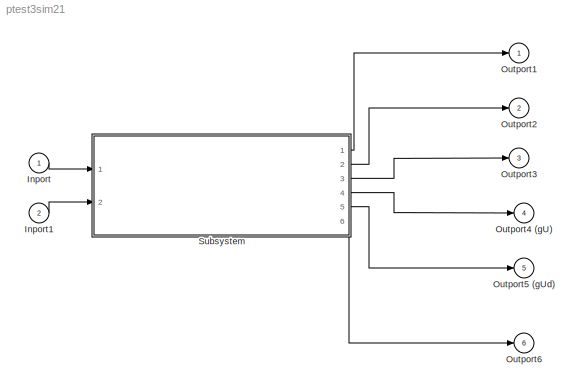
MODEL ptest3sim21
KIND model
BLOCK [Inport] Inport
  IconDisplay = Port number
  PortDimensions = 1
  SID = 1
BLOCK [Inport] Inport1
  IconDisplay = Port number
  Port = 2
  PortDimensions = 1
  SID = 2
BLOCK [Outport] Outport1
  IconDisplay = Port number
  SID = 57
BLOCK [Outport] Outport2
  IconDisplay = Port number
  Port = 2
  SID = 58
BLOCK [Outport] Outport3
  IconDisplay = Port number
  Port = 3
  SID = 59
BLOCK [Outport] Outport4 (gU)
  IconDisplay = Port number
  Port = 4
  SID = 60
BLOCK [Outport] Outport5 (gUd)
  IconDisplay = Port number
  Port = 5
  SID = 61
BLOCK [Outport] Outport6
  IconDisplay = Port number
  Port = 6
  SID = 62
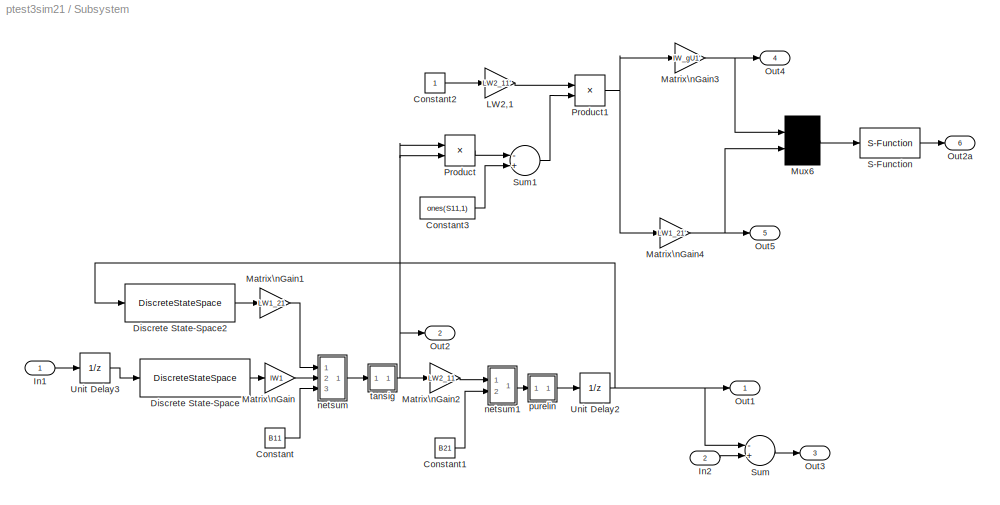
BLOCK [SubSystem] Subsystem
  Ports = [2, 6]
  RequestExecContextInheritance = off
  SID = 3
  Variant = off
BLOCK [Constant] Subsystem/Constant
  SID = 6
  Value = B11
BLOCK [Constant] Subsystem/Constant1
  SID = 7
  Value = B21
BLOCK [Constant] Subsystem/Constant2
  SID = 8
BLOCK [Constant] Subsystem/Constant3
  SID = 9
  Value = ones(S11,1)
BLOCK [DiscreteStateSpace] Subsystem/Discrete State-Space
  A = [0 zeros(1,Ni1-2);eye(Ni1-2,Ni1-1)]
  B = [zeros(double(Ni1==1));eye(Ni1-1,1)]
  C = [0 zeros(1,Ni1-2);eye(Ni1-1,Ni1-1)]
  D = eye(Ni1,1)
  SID = 10
  SampleTime = Ts1
  X0 = ud_init1
BLOCK [DiscreteStateSpace] Subsystem/Discrete State-Space2
  A = [0 zeros(1,Nj1-2);eye(Nj1-2,Nj1-1)]
  B = [zeros(double(Nj1==1));eye(Nj1-1,1)]
  C = [0 zeros(1,Nj1-2);eye(Nj1-1,Nj1-1)]
  D = eye(Nj1,1)
  SID = 11
  SampleTime = Ts1
  X0 = yd_init1
BLOCK [Inport] Subsystem/In1
  IconDisplay = Port number
  SID = 4
BLOCK [Inport] Subsystem/In2
  IconDisplay = Port number
  Port = 2
  SID = 5
BLOCK [Gain] Subsystem/LW2,1
  Gain = LW2_11'
  Multiplication = Matrix(K*u)
  SID = 12
BLOCK [Gain] Subsystem/Matrix\nGain
  Gain = IW1
  Multiplication = Matrix(K*u)
  SID = 13
BLOCK [Gain] Subsystem/Matrix\nGain1
  Gain = LW1_21
  Multiplication = Matrix(K*u)
  SID = 14
BLOCK [Gain] Subsystem/Matrix\nGain2
  Gain = LW2_11
  Multiplication = Matrix(K*u)
  SID = 15
BLOCK [Gain] Subsystem/Matrix\nGain3
  Gain = IW_gU1'
  Multiplication = Matrix(K*u)
  SID = 16
BLOCK [Gain] Subsystem/Matrix\nGain4
  Gain = LW1_21'
  Multiplication = Matrix(K*u)
  SID = 17
BLOCK [Mux] Subsystem/Mux6
  Inputs = 2
  Ports = [2, 1]
  SID = 18
BLOCK [Outport] Subsystem/Out1
  IconDisplay = Port number
  SID = 51
BLOCK [Outport] Subsystem/Out2
  IconDisplay = Port number
  Port = 2
  SID = 52
BLOCK [Outport] Subsystem/Out2a
  IconDisplay = Port number
  Port = 6
  SID = 56
BLOCK [Outport] Subsystem/Out3
  IconDisplay = Port number
  Port = 3
  SID = 53
BLOCK [Outport] Subsystem/Out4
  IconDisplay = Port number
  Port = 4
  SID = 54
BLOCK [Outport] Subsystem/Out5
  IconDisplay = Port number
  Port = 5
  SID = 55
BLOCK [Product] Subsystem/Product
  Ports = [2, 1]
  SID = 19
BLOCK [Product] Subsystem/Product1
  Ports = [2, 1]
  SID = 20
BLOCK [S-Function] Subsystem/S-Function
  EnableBusSupport = off
  FunctionName = dyduvar1
  Parameters = Nu1,Ni1,Nj1,Ts1,minp1,maxp1,mint1,maxt1,Normalize1
  Ports = [1, 1]
  SFunctionDeploymentMode = off
  SID = 21
BLOCK [Sum] Subsystem/Sum
  Inputs = -+
  Ports = [2, 1]
  SID = 22
BLOCK [Sum] Subsystem/Sum1
  Inputs = -+
  Ports = [2, 1]
  SID = 23
BLOCK [UnitDelay] Subsystem/Unit Delay2
  InitialCondition = y_init1
  SID = 24
  SampleTime = Ts1
BLOCK [UnitDelay] Subsystem/Unit Delay3
  InitialCondition = u_init1
  SID = 25
  SampleTime = Ts1
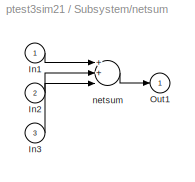
BLOCK [SubSystem] Subsystem/netsum
  Ports = [3, 1]
  RequestExecContextInheritance = off
  SID = 26
  Variant = off
BLOCK [Inport] Subsystem/netsum/In1
  IconDisplay = Port number
  SID = 27
BLOCK [Inport] Subsystem/netsum/In2
  IconDisplay = Port number
  Port = 2
  SID = 28
BLOCK [Inport] Subsystem/netsum/In3
  IconDisplay = Port number
  Port = 3
  SID = 29
BLOCK [Outport] Subsystem/netsum/Out1
  IconDisplay = Port number
  SID = 31
BLOCK [Sum] Subsystem/netsum/netsum
  Inputs = 3
  Ports = [3, 1]
  SID = 30
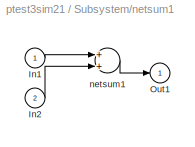
BLOCK [SubSystem] Subsystem/netsum1
  Ports = [2, 1]
  RequestExecContextInheritance = off
  SID = 32
  Variant = off
BLOCK [Inport] Subsystem/netsum1/In1
  IconDisplay = Port number
  SID = 33
BLOCK [Inport] Subsystem/netsum1/In2
  IconDisplay = Port number
  Port = 2
  SID = 34
BLOCK [Outport] Subsystem/netsum1/Out1
  IconDisplay = Port number
  SID = 36
BLOCK [Sum] Subsystem/netsum1/netsum1
  Inputs = 2
  Ports = [2, 1]
  SID = 35
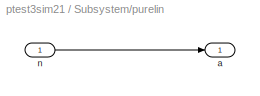
BLOCK [SubSystem] Subsystem/purelin
  Ports = [1, 1]
  RequestExecContextInheritance = off
  SID = 37
  Variant = off
BLOCK [Outport] Subsystem/purelin/a
  IconDisplay = Port number
  SID = 39
BLOCK [Inport] Subsystem/purelin/n
  IconDisplay = Port number
  SID = 38
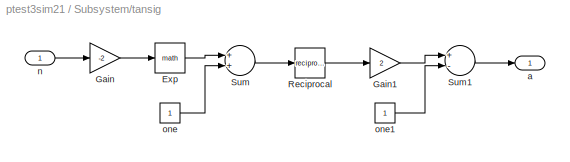
BLOCK [SubSystem] Subsystem/tansig
  Ports = [1, 1]
  RequestExecContextInheritance = off
  SID = 40
  Variant = off
BLOCK [Math] Subsystem/tansig/Exp
  Ports = [1, 1]
  SID = 42
BLOCK [Gain] Subsystem/tansig/Gain
  Gain = -2
  SID = 43
BLOCK [Gain] Subsystem/tansig/Gain1
  Gain = 2
  SID = 44
BLOCK [Math] Subsystem/tansig/Reciprocal
  Operator = reciprocal
  Ports = [1, 1]
  SID = 45
BLOCK [Sum] Subsystem/tansig/Sum
  Ports = [2, 1]
  SID = 46
BLOCK [Sum] Subsystem/tansig/Sum1
  Inputs = +-
  Ports = [2, 1]
  SID = 47
BLOCK [Outport] Subsystem/tansig/a
  IconDisplay = Port number
  SID = 50
BLOCK [Inport] Subsystem/tansig/n
  IconDisplay = Port number
  SID = 41
BLOCK [Constant] Subsystem/tansig/one
  SID = 48
BLOCK [Constant] Subsystem/tansig/one1
  SID = 49
LINE Inport1:1 -> Subsystem:2
LINE Inport:1 -> Subsystem:1
LINE Subsystem/Constant1:1 -> Subsystem/netsum1:2
LINE Subsystem/Constant2:1 -> Subsystem/LW2,1:1
LINE Subsystem/Constant3:1 -> Subsystem/Sum1:2
LINE Subsystem/Constant:1 -> Subsystem/netsum:3
LINE Subsystem/Discrete State-Space2:1 -> Subsystem/Matrix\nGain1:1
LINE Subsystem/Discrete State-Space:1 -> Subsystem/Matrix\nGain:1
LINE Subsystem/In1:1 -> Subsystem/Unit Delay3:1
LINE Subsystem/In2:1 -> Subsystem/Sum:2
LINE Subsystem/LW2,1:1 -> Subsystem/Product1:1
LINE Subsystem/Matrix\nGain1:1 -> Subsystem/netsum:1
LINE Subsystem/Matrix\nGain2:1 -> Subsystem/netsum1:1
NET Subsystem/Matrix\nGain3:1 -> Subsystem/Mux6:1, Subsystem/Out4:1
NET Subsystem/Matrix\nGain4:1 -> Subsystem/Mux6:2, Subsystem/Out5:1
LINE Subsystem/Matrix\nGain:1 -> Subsystem/netsum:2
LINE Subsystem/Mux6:1 -> Subsystem/S-Function:1
NET Subsystem/Product1:1 -> Subsystem/Matrix\nGain3:1, Subsystem/Matrix\nGain4:1
LINE Subsystem/Product:1 -> Subsystem/Sum1:1
LINE Subsystem/S-Function:1 -> Subsystem/Out2a:1
LINE Subsystem/Sum1:1 -> Subsystem/Product1:2
LINE Subsystem/Sum:1 -> Subsystem/Out3:1
NET Subsystem/Unit Delay2:1 -> Subsystem/Discrete State-Space2:1, Subsystem/Out1:1, Subsystem/Sum:1
LINE Subsystem/Unit Delay3:1 -> Subsystem/Discrete State-Space:1
LINE Subsystem/netsum/In1:1 -> Subsystem/netsum/netsum:1
LINE Subsystem/netsum/In2:1 -> Subsystem/netsum/netsum:2
LINE Subsystem/netsum/In3:1 -> Subsystem/netsum/netsum:3
LINE Subsystem/netsum/netsum:1 -> Subsystem/netsum/Out1:1
LINE Subsystem/netsum1/In1:1 -> Subsystem/netsum1/netsum1:1
LINE Subsystem/netsum1/In2:1 -> Subsystem/netsum1/netsum1:2
LINE Subsystem/netsum1/netsum1:1 -> Subsystem/netsum1/Out1:1
LINE Subsystem/netsum1:1 -> Subsystem/purelin:1
LINE Subsystem/netsum:1 -> Subsystem/tansig:1
LINE Subsystem/purelin/n:1 -> Subsystem/purelin/a:1
LINE Subsystem/purelin:1 -> Subsystem/Unit Delay2:1
LINE Subsystem/tansig/Exp:1 -> Subsystem/tansig/Sum:1
LINE Subsystem/tansig/Gain1:1 -> Subsystem/tansig/Sum1:1
LINE Subsystem/tansig/Gain:1 -> Subsystem/tansig/Exp:1
LINE Subsystem/tansig/Reciprocal:1 -> Subsystem/tansig/Gain1:1
LINE Subsystem/tansig/Sum1:1 -> Subsystem/tansig/a:1
LINE Subsystem/tansig/Sum:1 -> Subsystem/tansig/Reciprocal:1
LINE Subsystem/tansig/n:1 -> Subsystem/tansig/Gain:1
LINE Subsystem/tansig/one1:1 -> Subsystem/tansig/Sum1:2
LINE Subsystem/tansig/one:1 -> Subsystem/tansig/Sum:2
NET Subsystem/tansig:1 -> Subsystem/Matrix\nGain2:1, Subsystem/Out2:1, Subsystem/Product:1, Subsystem/Product:2
LINE Subsystem:1 -> Outport1:1
LINE Subsystem:2 -> Outport2:1
LINE Subsystem:3 -> Outport3:1
LINE Subsystem:4 -> Outport4 (gU):1
LINE Subsystem:5 -> Outport5 (gUd):1
LINE Subsystem:6 -> Outport6:1
note: NET lines group one-source signal fan-out (src -> all destinations, sorted); 1:1 wires keep LINE
